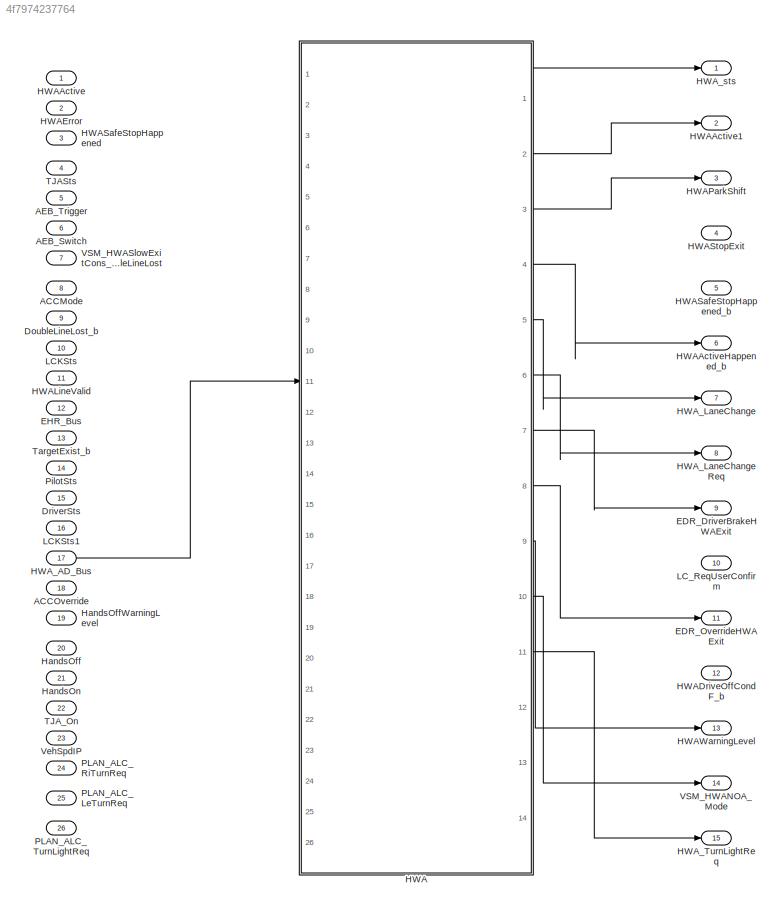
MODEL slx_4f7974237764
KIND model
CONFIG AbsTol = auto
CONFIG EnableMultiTasking = off
CONFIG FixedStep = auto
CONFIG InitFcn = , if any(exist('rtifpga_mdlclblib', 'file') ~= 0), rtifpga_mdlclblib('Init', bdroot); end,\n, if any(exist('dsmpb_private', 'file') ~= 0), dsmpb_private('dsmpb_mdlclblib', 'Init', bdroot); end,\n
CONFIG MaxStep = auto
CONFIG MinStep = auto
CONFIG PostLoadFcn = if any(exist('dsrtsu_mdlpostloadfcn', 'file') ~= 0), dsrtsu_mdlpostloadfcn('Execute', bdroot); end
CONFIG RelTol = 1e-3
CONFIG SampleTimeConstraint = Unconstrained
CONFIG SolverName = FixedStepAuto
CONFIG StartTime = 0.0
CONFIG StopTime = Inf
BLOCK [Inport] ACCMode
  OutDataTypeStr = Enum: ACC_STATE
  Port = 8
BLOCK [Inport] ACCOverride
  OutDataTypeStr = boolean
  Port = 18
BLOCK [Inport] AEB_Switch
  OutDataTypeStr = boolean
  Port = 6
BLOCK [Inport] AEB_Trigger
  OutDataTypeStr = boolean
  Port = 5
BLOCK [Inport] DoubleLineLost_b
  OutDataTypeStr = boolean
  Port = 9
BLOCK [Inport] DriverSts
  OutDataTypeStr = uint8
  Port = 15
BLOCK [Outport] EDR_DriverBrakeHWAExit
  OutDataTypeStr = boolean
  Port = 9
BLOCK [Outport] EDR_OverrideHWAExit
  OutDataTypeStr = boolean
  Port = 11
BLOCK [Inport] EHR_Bus
  OutDataTypeStr = Bus: EHR_Bus
  Port = 12
BLOCK [SubSystem] HWA
  Ports = [26, 14]
  ReferencedSubsystem = PvtSubSys_VSM_HWA_DHT
  RequestExecContextInheritance = off
BLOCK [Inport] HWAActive
  OutDataTypeStr = boolean
BLOCK [Outport] HWAActive1
  OutDataTypeStr = boolean
  Port = 2
BLOCK [Outport] HWAActiveHappened_b
  OutDataTypeStr = boolean
  Port = 6
BLOCK [Outport] HWADriveOffCondF_b
  OutDataTypeStr = boolean
  Port = 12
BLOCK [Inport] HWAError
  OutDataTypeStr = uint8
  Port = 2
BLOCK [Inport] HWALineValid
  OutDataTypeStr = boolean
  Port = 11
BLOCK [Outport] HWAParkShift
  OutDataTypeStr = boolean
  Port = 3
BLOCK [Inport] HWASafeStopHappened
  OutDataTypeStr = boolean
  Port = 3
BLOCK [Outport] HWASafeStopHappened_b
  OutDataTypeStr = boolean
  Port = 5
BLOCK [Outport] HWAStopExit
  OutDataTypeStr = boolean
  Port = 4
BLOCK [Outport] HWAWarningLevel
  OutDataTypeStr = uint8
  Port = 13
BLOCK [Inport] HWA_AD_Bus
  OutDataTypeStr = Bus: HWA_AD_Bus
  Port = 17
BLOCK [Outport] HWA_LaneChange
  OutDataTypeStr = uint8
  Port = 7
BLOCK [Outport] HWA_LaneChangeReq
  OutDataTypeStr = uint8
  Port = 8
BLOCK [Outport] HWA_TurnLightReq
  Port = 15
BLOCK [Outport] HWA_sts
  OutDataTypeStr = Enum: HWA_STATE
BLOCK [Inport] HandsOff
  OutDataTypeStr = boolean
  Port = 20
BLOCK [Inport] HandsOffWarningLevel
  OutDataTypeStr = uint8
  Port = 19
BLOCK [Inport] HandsOn
  OutDataTypeStr = boolean
  Port = 21
BLOCK [Inport] LCKSts
  OutDataTypeStr = Enum: LCK_STATE
  Port = 10
BLOCK [Inport] LCKSts1
  OutDataTypeStr = Enum: LCK_STATE
  Port = 16
BLOCK [Outport] LC_ReqUserConfirm
  OutDataTypeStr = boolean
  Port = 10
BLOCK [Inport] PLAN_ALC_LeTurnReq
  OutDataTypeStr = uint8
  Port = 25
BLOCK [Inport] PLAN_ALC_RiTurnReq
  OutDataTypeStr = uint8
  Port = 24
BLOCK [Inport] PLAN_ALC_TurnLightReq
  Port = 26
BLOCK [Inport] PilotSts
  OutDataTypeStr = uint8
  Port = 14
BLOCK [Inport] TJASts
  OutDataTypeStr = Enum: TJA_STATE
  Port = 4
BLOCK [Inport] TJA_On
  OutDataTypeStr = boolean
  Port = 22
BLOCK [Inport] TargetExist_b
  OutDataTypeStr = boolean
  Port = 13
BLOCK [Outport] VSM_HWANOA_Mode
  OutDataTypeStr = uint8
  Port = 14
BLOCK [Inport] VSM_HWASlowExitCons_SingleLineLost
  OutDataTypeStr = boolean
  Port = 7
BLOCK [Inport] VehSpdIP
  OutDataTypeStr = single
  Port = 23
LINE HWA:1 -> HWA_sts:1
LINE HWA:10 -> VSM_HWANOA_Mode:1
LINE HWA:11 -> HWA_TurnLightReq:1
LINE HWA:2 -> HWAActive1:1
LINE HWA:3 -> HWAParkShift:1
LINE HWA:4 -> HWAActiveHappened_b:1
LINE HWA:5 -> HWA_LaneChange:1
LINE HWA:6 -> HWA_LaneChangeReq:1
LINE HWA:7 -> EDR_DriverBrakeHWAExit:1
LINE HWA:8 -> EDR_OverrideHWAExit:1
LINE HWA:9 -> HWAWarningLevel:1
LINE HWA_AD_Bus:1 -> HWA:11
